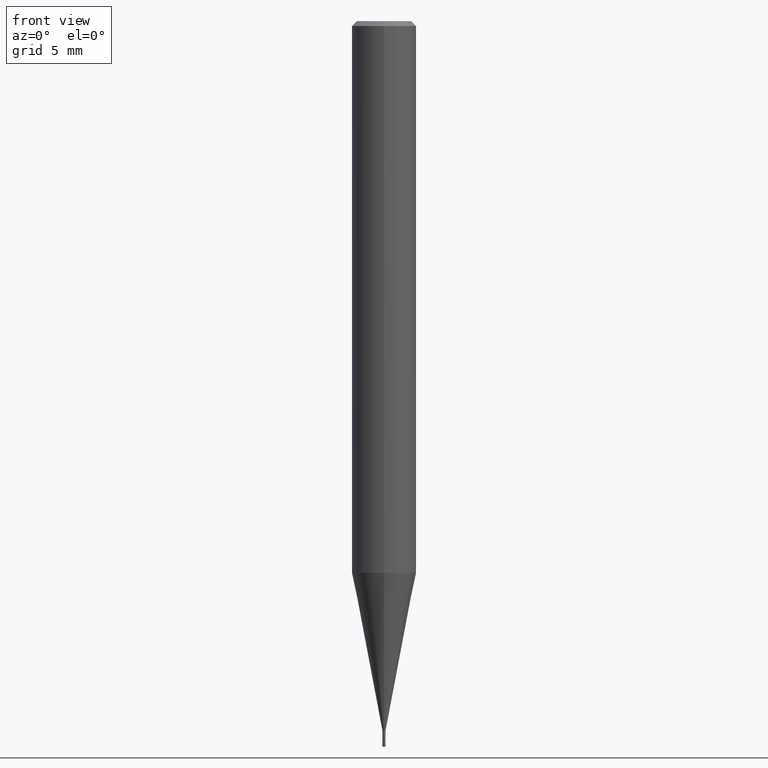
[diagram: clean part render]
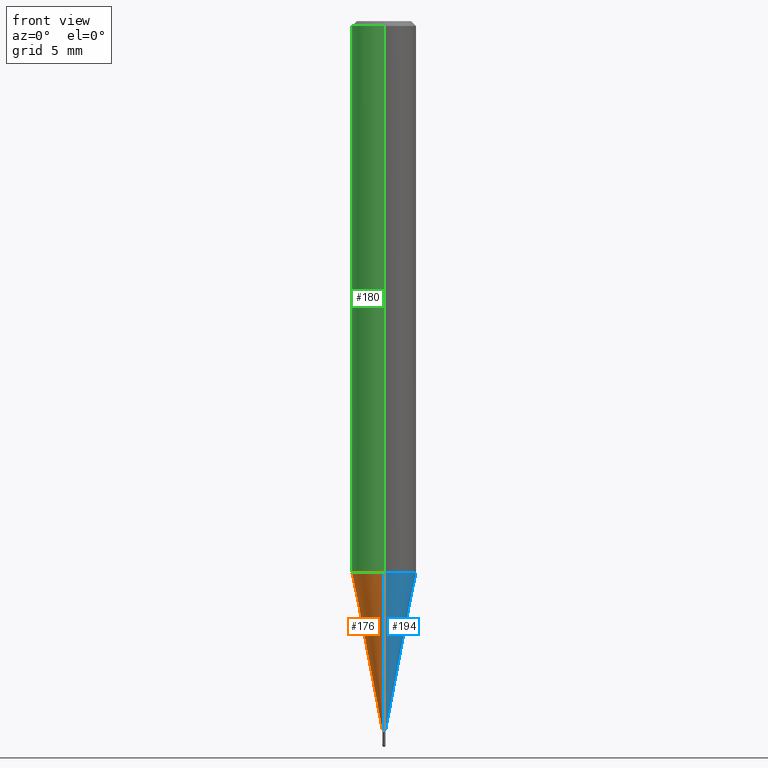
[diagram: same view with three faces highlighted in distinct colors, each labeled with its STEP entity id]
A machine part, front view with three faces highlighted in distinct colors.
Their STEP definitions:

[orange] entity #176 — the highlighted conical surface has half-angle 11 deg.
#112=EDGE_CURVE('',#142,#156,#254,.T.);
#140=VERTEX_POINT('',#288);
#142=VERTEX_POINT('',#290);
#148=VERTEX_POINT('',#296);
#156=VERTEX_POINT('',#304);
#170=EDGE_CURVE('',#142,#140,#320,.T.);
#176=ADVANCED_FACE('',(#327),#328,.T.);
#182=EDGE_CURVE('',#140,#148,#335,.T.);
#210=EDGE_CURVE('',#148,#156,#367,.T.);
#254=CIRCLE('',#412,0.09495);
#288=CARTESIAN_POINT('',(2.44915147732706E-016,-1.99995,-34.2));
#290=CARTESIAN_POINT('',(1.16276373295435E-017,-0.09495,-44.0));
#296=CARTESIAN_POINT('',(0.0,1.99995,-34.2));
#304=CARTESIAN_POINT('',(0.0,0.09495,-44.0));
#320=LINE('',#491,#492);
#327=FACE_OUTER_BOUND('',#499,.T.);
#328=CONICAL_SURFACE('',#500,1.04745,0.191993392580482);
#335=CIRCLE('',#509,1.99995);
#367=LINE('',#551,#552);
#412=AXIS2_PLACEMENT_3D('',#580,#581,#582);
#491=CARTESIAN_POINT('',(1.28271392531125E-016,-1.04745,-39.1));
#492=VECTOR('',#657,1.0);
#499=EDGE_LOOP('',(#665,#666,#667,#668));
#500=AXIS2_PLACEMENT_3D('',#669,#670,#671);
#509=AXIS2_PLACEMENT_3D('',#683,#684,#685);
#551=CARTESIAN_POINT('',(-1.28271392531125E-016,1.04745,-39.1));
#552=VECTOR('',#733,1.0);
#580=CARTESIAN_POINT('',(0.0,0.0,-44.0));
#581=DIRECTION('',(0.0,0.0,-1.0));
#582=DIRECTION('',(0.0,1.0,0.0));
#657=DIRECTION('',(2.33674533048507E-017,-0.190816038410332,0.981625814394358));
#665=ORIENTED_EDGE('',*,*,#210,.T.);
#666=ORIENTED_EDGE('',*,*,#112,.F.);
#667=ORIENTED_EDGE('',*,*,#170,.T.);
#668=ORIENTED_EDGE('',*,*,#182,.T.);
#669=CARTESIAN_POINT('',(0.0,0.0,-39.1));
#670=DIRECTION('',(-0.0,-0.0,1.0));
#671=DIRECTION('',(0.0,1.0,0.0));
#683=CARTESIAN_POINT('',(0.0,0.0,-34.2));
#684=DIRECTION('',(0.0,0.0,-1.0));
#685=DIRECTION('',(0.0,1.0,0.0));
#733=DIRECTION('',(2.33674533048507E-017,-0.190816038410332,-0.981625814394358));

[blue] entity #194 — the highlighted conical surface has half-angle 11 deg.
#140=VERTEX_POINT('',#288);
#142=VERTEX_POINT('',#290);
#148=VERTEX_POINT('',#296);
#156=VERTEX_POINT('',#304);
#170=EDGE_CURVE('',#142,#140,#320,.T.);
#184=EDGE_CURVE('',#156,#142,#337,.T.);
#194=ADVANCED_FACE('',(#347),#348,.T.);
#206=EDGE_CURVE('',#148,#140,#363,.T.);
#210=EDGE_CURVE('',#148,#156,#367,.T.);
#288=CARTESIAN_POINT('',(2.44915147732706E-016,-1.99995,-34.2));
#290=CARTESIAN_POINT('',(1.16276373295435E-017,-0.09495,-44.0));
#296=CARTESIAN_POINT('',(0.0,1.99995,-34.2));
#304=CARTESIAN_POINT('',(0.0,0.09495,-44.0));
#320=LINE('',#491,#492);
#337=CIRCLE('',#512,0.09495);
#347=FACE_OUTER_BOUND('',#526,.T.);
#348=CONICAL_SURFACE('',#527,1.04745,0.191993392580482);
#363=CIRCLE('',#544,1.99995);
#367=LINE('',#551,#552);
#491=CARTESIAN_POINT('',(1.28271392531125E-016,-1.04745,-39.1));
#492=VECTOR('',#657,1.0);
#512=AXIS2_PLACEMENT_3D('',#686,#687,#688);
#526=EDGE_LOOP('',(#697,#698,#699,#700));
#527=AXIS2_PLACEMENT_3D('',#701,#702,#703);
#544=AXIS2_PLACEMENT_3D('',#729,#730,#731);
#551=CARTESIAN_POINT('',(-1.28271392531125E-016,1.04745,-39.1));
#552=VECTOR('',#733,1.0);
#657=DIRECTION('',(2.33674533048507E-017,-0.190816038410332,0.981625814394358));
#686=CARTESIAN_POINT('',(0.0,0.0,-44.0));
#687=DIRECTION('',(0.0,0.0,-1.0));
#688=DIRECTION('',(0.0,1.0,0.0));
#697=ORIENTED_EDGE('',*,*,#210,.F.);
#698=ORIENTED_EDGE('',*,*,#206,.T.);
#699=ORIENTED_EDGE('',*,*,#170,.F.);
#700=ORIENTED_EDGE('',*,*,#184,.F.);
#701=CARTESIAN_POINT('',(0.0,0.0,-39.1));
#702=DIRECTION('',(-0.0,-0.0,1.0));
#703=DIRECTION('',(0.0,1.0,0.0));
#729=CARTESIAN_POINT('',(0.0,0.0,-34.2));
#730=DIRECTION('',(0.0,0.0,-1.0));
#731=DIRECTION('',(0.0,1.0,0.0));
#733=DIRECTION('',(2.33674533048507E-017,-0.190816038410332,-0.981625814394358));

[green] entity #180 — the highlighted cylindrical surface (edge-blend (fillet) strip) has radius 2 mm, axis along (-0, -0, 1).
#106=EDGE_CURVE('',#188,#172,#248,.T.);
#134=VERTEX_POINT('',#281);
#146=EDGE_CURVE('',#172,#134,#294,.T.);
#164=VERTEX_POINT('',#314);
#172=VERTEX_POINT('',#322);
#180=ADVANCED_FACE('',(#332),#333,.T.);
#188=VERTEX_POINT('',#341);
#192=EDGE_CURVE('',#164,#188,#345,.T.);
#202=EDGE_CURVE('',#164,#134,#358,.T.);
#248=CIRCLE('',#404,2.0);
#281=CARTESIAN_POINT('',(0.0,2.0,-34.2));
#294=LINE('',#456,#457);
#314=CARTESIAN_POINT('',(2.44921270764475E-016,-2.0,-34.2));
#322=CARTESIAN_POINT('',(0.0,2.0,-0.299999999999997));
#332=FACE_OUTER_BOUND('',#505,.T.);
#333=CYLINDRICAL_SURFACE('',#506,2.0);
#341=CARTESIAN_POINT('',(2.44921270764475E-016,-2.0,-0.299999999999997));
#345=LINE('',#523,#524);
#358=CIRCLE('',#538,2.0);
#404=AXIS2_PLACEMENT_3D('',#574,#575,#576);
#456=CARTESIAN_POINT('',(-2.44921270764475E-016,2.0,-17.25));
#457=VECTOR('',#642,1.0);
#505=EDGE_LOOP('',(#676,#677,#678,#679));
#506=AXIS2_PLACEMENT_3D('',#680,#681,#682);
#523=CARTESIAN_POINT('',(2.44921270764475E-016,-2.0,-17.25));
#524=VECTOR('',#695,1.0);
#538=AXIS2_PLACEMENT_3D('',#720,#721,#722);
#574=CARTESIAN_POINT('',(0.0,0.0,-0.299999999999997));
#575=DIRECTION('',(0.0,0.0,-1.0));
#576=DIRECTION('',(0.0,1.0,0.0));
#642=DIRECTION('',(0.0,0.0,-1.0));
#676=ORIENTED_EDGE('',*,*,#146,.T.);
#677=ORIENTED_EDGE('',*,*,#202,.F.);
#678=ORIENTED_EDGE('',*,*,#192,.T.);
#679=ORIENTED_EDGE('',*,*,#106,.T.);
#680=CARTESIAN_POINT('',(0.0,0.0,-17.25));
#681=DIRECTION('',(-0.0,-0.0,1.0));
#682=DIRECTION('',(0.0,1.0,0.0));
#695=DIRECTION('',(-0.0,-0.0,1.0));
#720=CARTESIAN_POINT('',(0.0,0.0,-34.2));
#721=DIRECTION('',(0.0,0.0,-1.0));
#722=DIRECTION('',(0.0,1.0,0.0));